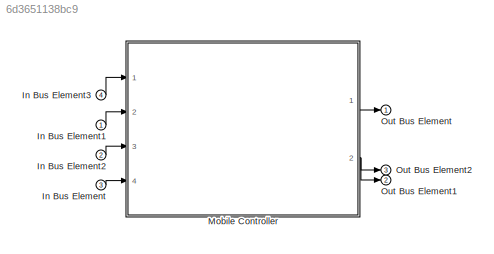
MODEL slx_6d3651138bc9
KIND model
CONFIG AbsTol = auto
CONFIG EnableMultiTasking = off
CONFIG FixedStep = auto
CONFIG MaxStep = auto
CONFIG MinStep = auto
CONFIG RelTol = 1e-3
CONFIG SampleTimeConstraint = Unconstrained
CONFIG SolverName = FixedStepDiscrete
CONFIG StartTime = 0.0
CONFIG StopTime = 10.0
BLOCK [Inport] In Bus Element
  Port = 3
BLOCK [Inport] In Bus Element1
BLOCK [Inport] In Bus Element2
  Port = 2
BLOCK [Inport] In Bus Element3
  Port = 4
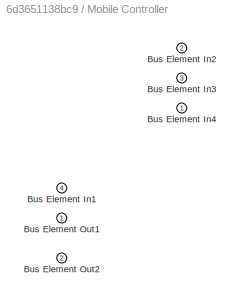
BLOCK [SubSystem] Mobile Controller
  PortSchema = {"entries":[{"content":{"headerSize":26,"margin":15,"minimumSpacing":25,"sides":[{"content":{"connectorIds":["In1","In2","In3","In4"]},"type":"ConnectorPlacement.EquallySpacedRectSide","uuid":"dd41dd12-49ec-4c74-984d-ae398e001f17"},{"content":{"connectorIds":["Out1","Out2"],"side":"RIGHT"},"type":"ConnectorPlacement.EquallySpacedRectSide","uuid":"7b6711d5-260d-4adb-8390-dd0a2fe64eed"},{"content":{...<+313ch>
  Ports = [4, 2]
  RequestExecContextInheritance = off
BLOCK [Inport] Mobile Controller/Bus Element In1
  Port = 4
BLOCK [Inport] Mobile Controller/Bus Element In2
  Port = 2
BLOCK [Inport] Mobile Controller/Bus Element In3
  Port = 3
BLOCK [Inport] Mobile Controller/Bus Element In4
BLOCK [Outport] Mobile Controller/Bus Element Out1
BLOCK [Outport] Mobile Controller/Bus Element Out2
  Port = 2
BLOCK [Outport] Out Bus Element
BLOCK [Outport] Out Bus Element1
  Port = 2
BLOCK [Outport] Out Bus Element2
  Port = 3
LINE In Bus Element1:1 -> Mobile Controller:2
LINE In Bus Element2:1 -> Mobile Controller:3
LINE In Bus Element3:1 -> Mobile Controller:1
LINE In Bus Element:1 -> Mobile Controller:4
LINE Mobile Controller:1 -> Out Bus Element:1
NET Mobile Controller:2 -> Out Bus Element1:1, Out Bus Element2:1
note: NET lines group one-source signal fan-out (src -> all destinations, sorted); 1:1 wires keep LINE
